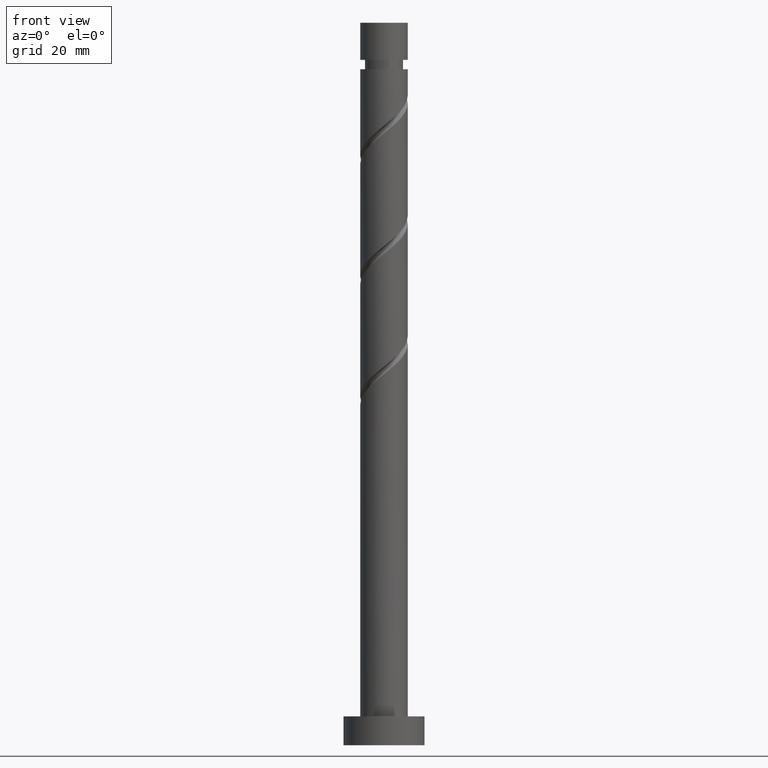
[diagram: clean part render]
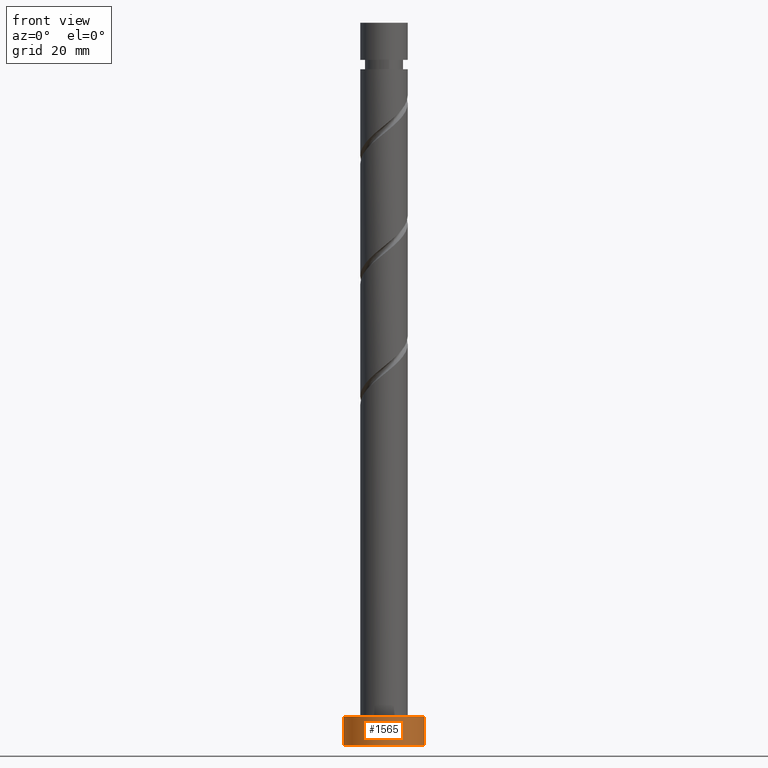
[diagram: same view with one face highlighted and labeled with its STEP entity id]
A machine part, front view. The second image highlights one B-rep face of the part: STEP entity #1565.
In plain terms, the highlighted cylindrical surface (partial cylindrical patch) has radius 7 mm, axis along (-0, -0, -1).
Its self-contained STEP definition (entity closure, byte-faithful):
#104 = ORIENTED_EDGE ( 'NONE', *, *, #133, .F. ) ;
#129 = CYLINDRICAL_SURFACE ( 'NONE', #1168, 7.000000000000000000 ) ;
#133 = EDGE_CURVE ( 'NONE', #743, #846, #835, .T. ) ;
#201 = VERTEX_POINT ( 'NONE', #738 ) ;
#224 = CARTESIAN_POINT ( 'NONE',  ( 7.000000000000000000, 8.572527594031473190E-16, 0.000000000000000000 ) ) ;
#232 = LINE ( 'NONE', #1172, #735 ) ;
#243 = CARTESIAN_POINT ( 'NONE',  ( 0.000000000000000000, 0.000000000000000000, 5.000000000000000000 ) ) ;
#404 = CIRCLE ( 'NONE', #559, 7.000000000000000000 ) ;
#450 = DIRECTION ( 'NONE',  ( 1.000000000000000000, 0.000000000000000000, 0.000000000000000000 ) ) ;
#460 = CARTESIAN_POINT ( 'NONE',  ( 7.000000000000000000, 8.572527594031473190E-16, 5.000000000000000000 ) ) ;
#471 = ORIENTED_EDGE ( 'NONE', *, *, #646, .T. ) ;
#559 = AXIS2_PLACEMENT_3D ( 'NONE', #1542, #710, #450 ) ;
#606 = CARTESIAN_POINT ( 'NONE',  ( 7.000000000000000000, 8.572527594031473190E-16, 5.000000000000000000 ) ) ;
#609 = DIRECTION ( 'NONE',  ( -1.000000000000000000, 0.000000000000000000, 0.000000000000000000 ) ) ;
#646 = EDGE_CURVE ( 'NONE', #1449, #201, #232, .T. ) ;
#691 = DIRECTION ( 'NONE',  ( 1.000000000000000000, 0.000000000000000000, 0.000000000000000000 ) ) ;
#710 = DIRECTION ( 'NONE',  ( 0.000000000000000000, 0.000000000000000000, 1.000000000000000000 ) ) ;
#714 = EDGE_CURVE ( 'NONE', #1449, #743, #1038, .T. ) ;
#722 = DIRECTION ( 'NONE',  ( -0.000000000000000000, -0.000000000000000000, -1.000000000000000000 ) ) ;
#735 = VECTOR ( 'NONE', #1179, 1000.000000000000000 ) ;
#738 = CARTESIAN_POINT ( 'NONE',  ( -7.000000000000000000, 0.000000000000000000, 0.000000000000000000 ) ) ;
#743 = VERTEX_POINT ( 'NONE', #460 ) ;
#835 = LINE ( 'NONE', #606, #1290 ) ;
#846 = VERTEX_POINT ( 'NONE', #224 ) ;
#890 = ORIENTED_EDGE ( 'NONE', *, *, #1256, .T. ) ;
#1038 = CIRCLE ( 'NONE', #1247, 7.000000000000000000 ) ;
#1107 = ORIENTED_EDGE ( 'NONE', *, *, #714, .F. ) ;
#1113 = CARTESIAN_POINT ( 'NONE',  ( -7.000000000000000000, 0.000000000000000000, 5.000000000000000000 ) ) ;
#1168 = AXIS2_PLACEMENT_3D ( 'NONE', #243, #722, #609 ) ;
#1172 = CARTESIAN_POINT ( 'NONE',  ( -7.000000000000000000, 0.000000000000000000, 5.000000000000000000 ) ) ;
#1179 = DIRECTION ( 'NONE',  ( -0.000000000000000000, -0.000000000000000000, -1.000000000000000000 ) ) ;
#1186 = CARTESIAN_POINT ( 'NONE',  ( 0.000000000000000000, 0.000000000000000000, 5.000000000000000000 ) ) ;
#1219 = FACE_OUTER_BOUND ( 'NONE', #1300, .T. ) ;
#1247 = AXIS2_PLACEMENT_3D ( 'NONE', #1186, #1324, #691 ) ;
#1256 = EDGE_CURVE ( 'NONE', #201, #846, #404, .T. ) ;
#1290 = VECTOR ( 'NONE', #1318, 1000.000000000000000 ) ;
#1300 = EDGE_LOOP ( 'NONE', ( #104, #1107, #471, #890 ) ) ;
#1318 = DIRECTION ( 'NONE',  ( -0.000000000000000000, -0.000000000000000000, -1.000000000000000000 ) ) ;
#1324 = DIRECTION ( 'NONE',  ( 0.000000000000000000, 0.000000000000000000, 1.000000000000000000 ) ) ;
#1449 = VERTEX_POINT ( 'NONE', #1113 ) ;
#1542 = CARTESIAN_POINT ( 'NONE',  ( 0.000000000000000000, 0.000000000000000000, 0.000000000000000000 ) ) ;
#1565 = ADVANCED_FACE ( 'NONE', ( #1219 ), #129, .T. ) ;